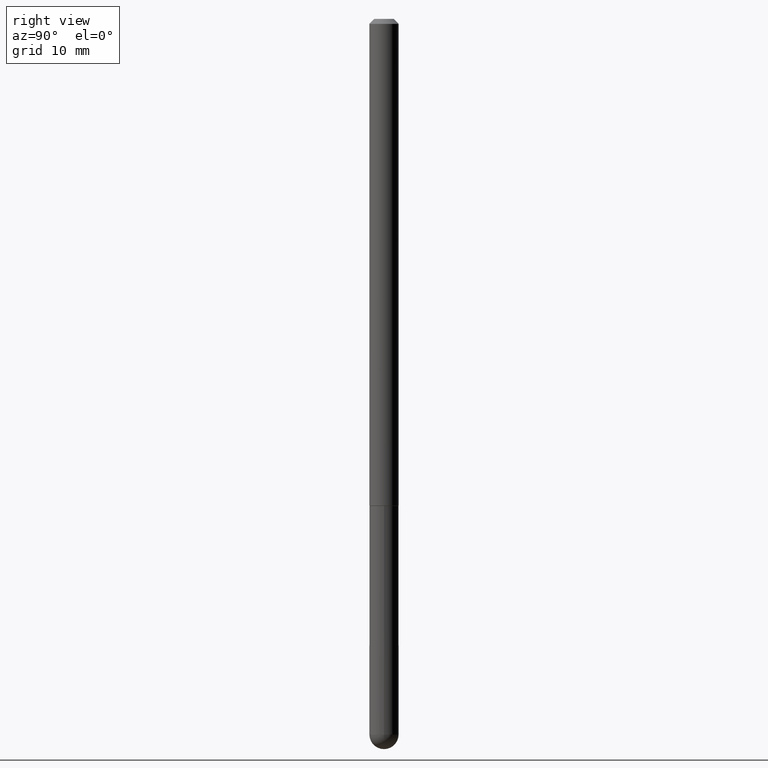
[diagram: clean part render]
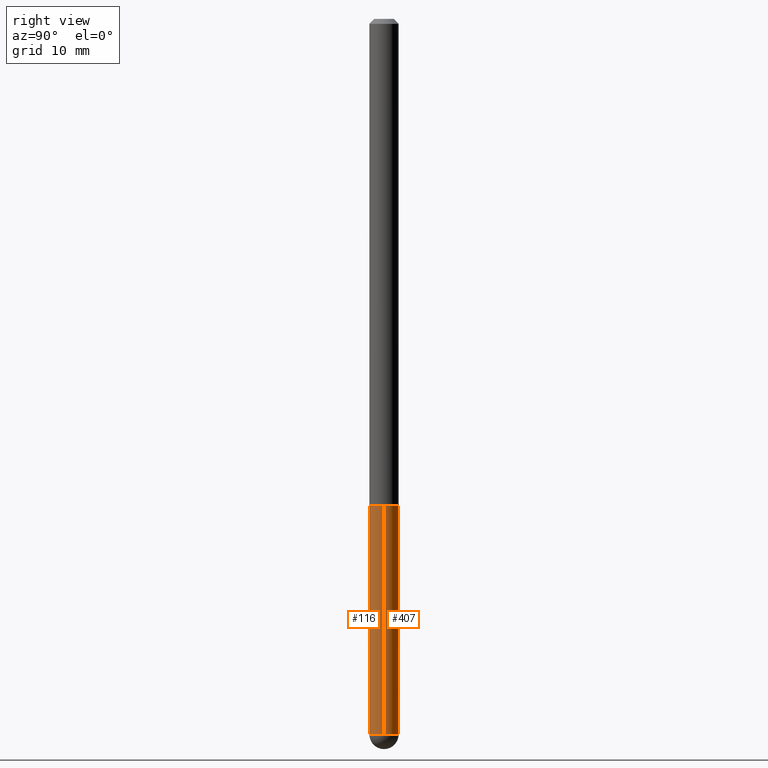
[diagram: same view with one multi-face feature highlighted, each face labeled with its STEP entity id]
A machine part, right view. The highlighted faces form ONE feature: a constant-radius fillet chain: 2 tangent blend faces with common blend radius 1.4999 mm. The faces share edges in the B-rep.
Their STEP definitions:
[1] entity #407 (Cylinder):
#14 = LINE ( 'NONE', #297, #315 ) ;
#18 = ORIENTED_EDGE ( 'NONE', *, *, #334, .F. ) ;
#20 = DIRECTION ( 'NONE',  ( 1.000000000000000000, -6.982962677686270655E-15, 0.000000000000000000 ) ) ;
#28 = EDGE_CURVE ( 'NONE', #272, #289, #105, .T. ) ;
#31 = EDGE_CURVE ( 'NONE', #390, #296, #183, .T. ) ;
#39 = CARTESIAN_POINT ( 'NONE',  ( -0.05905000000000001914, -8.068652084428701697E-15, -1.968499999999999694 ) ) ;
#46 = CARTESIAN_POINT ( 'NONE',  ( 7.076575357898237682E-29, -1.010347412427735067E-14, -2.893749999999999822 ) ) ;
#53 = AXIS2_PLACEMENT_3D ( 'NONE', #232, #355, #166 ) ;
#65 = AXIS2_PLACEMENT_3D ( 'NONE', #107, #238, #132 ) ;
#70 = EDGE_LOOP ( 'NONE', ( #229, #134, #169, #18, #363 ) ) ;
#91 = CYLINDRICAL_SURFACE ( 'NONE', #400, 0.05905000000000001914 ) ;
#103 = LINE ( 'NONE', #133, #192 ) ;
#105 = CIRCLE ( 'NONE', #65, 0.05905000000000001914 ) ;
#107 = CARTESIAN_POINT ( 'NONE',  ( 4.813905344975440714E-29, -6.872981015512730918E-15, -1.968499999999999694 ) ) ;
#132 = DIRECTION ( 'NONE',  ( 1.000000000000000000, -6.982962677686270655E-15, 0.000000000000000000 ) ) ;
#133 = CARTESIAN_POINT ( 'NONE',  ( 0.05905000000000001914, -4.123439461173741806E-16, 2.879382386107500921E-30 ) ) ;
#134 = ORIENTED_EDGE ( 'NONE', *, *, #317, .T. ) ;
#166 = DIRECTION ( 'NONE',  ( 1.000000000000000000, -6.982962677686270655E-15, 0.000000000000000000 ) ) ;
#169 = ORIENTED_EDGE ( 'NONE', *, *, #28, .F. ) ;
#174 = DIRECTION ( 'NONE',  ( -2.445468806185136597E-29, 3.491481338843145583E-15, 1.000000000000000000 ) ) ;
#183 = CIRCLE ( 'NONE', #288, 0.05905000000000001914 ) ;
#192 = VECTOR ( 'NONE', #361, 39.37007874015748143 ) ;
#216 = VERTEX_POINT ( 'NONE', #370 ) ;
#229 = ORIENTED_EDGE ( 'NONE', *, *, #314, .T. ) ;
#232 = CARTESIAN_POINT ( 'NONE',  ( 7.076575357898237682E-29, -1.010347412427735067E-14, -2.893749999999999822 ) ) ;
#238 = DIRECTION ( 'NONE',  ( -2.445468806185136597E-29, 3.491481338843145583E-15, 1.000000000000000000 ) ) ;
#247 = CIRCLE ( 'NONE', #53, 0.05905000000000001914 ) ;
#253 = CARTESIAN_POINT ( 'NONE',  ( 0.05905000000000001914, -8.900571516012416899E-15, -2.893749999999999822 ) ) ;
#265 = DIRECTION ( 'NONE',  ( -2.445468806185136877E-29, 3.491481338843145188E-15, 1.000000000000000000 ) ) ;
#272 = VERTEX_POINT ( 'NONE', #273 ) ;
#273 = CARTESIAN_POINT ( 'NONE',  ( 0.05905000000000001914, -7.285324961630105839E-15, -1.968499999999999694 ) ) ;
#288 = AXIS2_PLACEMENT_3D ( 'NONE', #46, #174, #20 ) ;
#289 = VERTEX_POINT ( 'NONE', #39 ) ;
#292 = FACE_OUTER_BOUND ( 'NONE', #70, .T. ) ;
#296 = VERTEX_POINT ( 'NONE', #307 ) ;
#297 = CARTESIAN_POINT ( 'NONE',  ( -0.05905000000000001914, 4.195754854663392958E-16, -2.904631170795522943E-30 ) ) ;
#307 = CARTESIAN_POINT ( 'NONE',  ( 4.123439461174440441E-16, 0.05904999999998979815, -2.893749999999999822 ) ) ;
#314 = EDGE_CURVE ( 'NONE', #296, #216, #247, .T. ) ;
#315 = VECTOR ( 'NONE', #265, 39.37007874015748143 ) ;
#317 = EDGE_CURVE ( 'NONE', #216, #289, #14, .T. ) ;
#329 = CARTESIAN_POINT ( 'NONE',  ( 0.000000000000000000, 0.000000000000000000, 0.000000000000000000 ) ) ;
#334 = EDGE_CURVE ( 'NONE', #390, #272, #103, .T. ) ;
#353 = DIRECTION ( 'NONE',  ( 1.000000000000000000, -6.982962677686266711E-15, 4.876176775795935793E-29 ) ) ;
#354 = DIRECTION ( 'NONE',  ( -2.445468806185136597E-29, 3.491481338843145583E-15, 1.000000000000000000 ) ) ;
#355 = DIRECTION ( 'NONE',  ( -2.445468806185136597E-29, 3.491481338843145583E-15, 1.000000000000000000 ) ) ;
#361 = DIRECTION ( 'NONE',  ( -2.445468806185136877E-29, 3.491481338843145188E-15, 1.000000000000000000 ) ) ;
#363 = ORIENTED_EDGE ( 'NONE', *, *, #31, .T. ) ;
#370 = CARTESIAN_POINT ( 'NONE',  ( -0.05905000000000001914, -8.068652084428701697E-15, -2.893749999999999822 ) ) ;
#390 = VERTEX_POINT ( 'NONE', #253 ) ;
#400 = AXIS2_PLACEMENT_3D ( 'NONE', #329, #354, #353 ) ;
#407 = ADVANCED_FACE ( 'NONE', ( #292 ), #91, .T. ) ;
[2] entity #116 (Cylinder):
#10 = VERTEX_POINT ( 'NONE', #302 ) ;
#14 = LINE ( 'NONE', #297, #315 ) ;
#19 = DIRECTION ( 'NONE',  ( 1.000000000000000000, -6.982962677686270655E-15, 0.000000000000000000 ) ) ;
#25 = CIRCLE ( 'NONE', #168, 0.05905000000000001914 ) ;
#29 = CARTESIAN_POINT ( 'NONE',  ( 7.076575357898237682E-29, -1.010347412427735067E-14, -2.893749999999999822 ) ) ;
#35 = EDGE_LOOP ( 'NONE', ( #271, #98, #357, #109, #160 ) ) ;
#39 = CARTESIAN_POINT ( 'NONE',  ( -0.05905000000000001914, -8.068652084428701697E-15, -1.968499999999999694 ) ) ;
#42 = CARTESIAN_POINT ( 'NONE',  ( 7.076575357898237682E-29, -1.010347412427735067E-14, -2.893749999999999822 ) ) ;
#56 = EDGE_CURVE ( 'NONE', #216, #10, #161, .T. ) ;
#63 = DIRECTION ( 'NONE',  ( -2.445468806185136597E-29, 3.491481338843145583E-15, 1.000000000000000000 ) ) ;
#89 = DIRECTION ( 'NONE',  ( 1.000000000000000000, -6.982962677686270655E-15, 0.000000000000000000 ) ) ;
#94 = EDGE_CURVE ( 'NONE', #289, #272, #25, .T. ) ;
#98 = ORIENTED_EDGE ( 'NONE', *, *, #56, .T. ) ;
#103 = LINE ( 'NONE', #133, #192 ) ;
#109 = ORIENTED_EDGE ( 'NONE', *, *, #334, .T. ) ;
#110 = AXIS2_PLACEMENT_3D ( 'NONE', #42, #235, #19 ) ;
#116 = ADVANCED_FACE ( 'NONE', ( #252 ), #157, .T. ) ;
#123 = DIRECTION ( 'NONE',  ( -2.445468806185136597E-29, 3.491481338843145583E-15, 1.000000000000000000 ) ) ;
#126 = AXIS2_PLACEMENT_3D ( 'NONE', #29, #290, #188 ) ;
#133 = CARTESIAN_POINT ( 'NONE',  ( 0.05905000000000001914, -4.123439461173741806E-16, 2.879382386107500921E-30 ) ) ;
#157 = CYLINDRICAL_SURFACE ( 'NONE', #397, 0.05905000000000001914 ) ;
#160 = ORIENTED_EDGE ( 'NONE', *, *, #94, .F. ) ;
#161 = CIRCLE ( 'NONE', #126, 0.05905000000000001914 ) ;
#168 = AXIS2_PLACEMENT_3D ( 'NONE', #281, #63, #89 ) ;
#188 = DIRECTION ( 'NONE',  ( 1.000000000000000000, -6.982962677686270655E-15, 0.000000000000000000 ) ) ;
#192 = VECTOR ( 'NONE', #361, 39.37007874015748143 ) ;
#216 = VERTEX_POINT ( 'NONE', #370 ) ;
#235 = DIRECTION ( 'NONE',  ( -2.445468806185136597E-29, 3.491481338843145583E-15, 1.000000000000000000 ) ) ;
#252 = FACE_OUTER_BOUND ( 'NONE', #35, .T. ) ;
#253 = CARTESIAN_POINT ( 'NONE',  ( 0.05905000000000001914, -8.900571516012416899E-15, -2.893749999999999822 ) ) ;
#265 = DIRECTION ( 'NONE',  ( -2.445468806185136877E-29, 3.491481338843145188E-15, 1.000000000000000000 ) ) ;
#271 = ORIENTED_EDGE ( 'NONE', *, *, #317, .F. ) ;
#272 = VERTEX_POINT ( 'NONE', #273 ) ;
#273 = CARTESIAN_POINT ( 'NONE',  ( 0.05905000000000001914, -7.285324961630105839E-15, -1.968499999999999694 ) ) ;
#281 = CARTESIAN_POINT ( 'NONE',  ( 4.813905344975440714E-29, -6.872981015512730918E-15, -1.968499999999999694 ) ) ;
#289 = VERTEX_POINT ( 'NONE', #39 ) ;
#290 = DIRECTION ( 'NONE',  ( -2.445468806185136597E-29, 3.491481338843145583E-15, 1.000000000000000000 ) ) ;
#297 = CARTESIAN_POINT ( 'NONE',  ( -0.05905000000000001914, 4.195754854663392958E-16, -2.904631170795522943E-30 ) ) ;
#302 = CARTESIAN_POINT ( 'NONE',  ( -4.195754854662709114E-16, -0.05905000000001047605, -2.893749999999999822 ) ) ;
#315 = VECTOR ( 'NONE', #265, 39.37007874015748143 ) ;
#317 = EDGE_CURVE ( 'NONE', #216, #289, #14, .T. ) ;
#334 = EDGE_CURVE ( 'NONE', #390, #272, #103, .T. ) ;
#345 = EDGE_CURVE ( 'NONE', #10, #390, #360, .T. ) ;
#352 = CARTESIAN_POINT ( 'NONE',  ( 0.000000000000000000, 0.000000000000000000, 0.000000000000000000 ) ) ;
#357 = ORIENTED_EDGE ( 'NONE', *, *, #345, .T. ) ;
#360 = CIRCLE ( 'NONE', #110, 0.05905000000000001914 ) ;
#361 = DIRECTION ( 'NONE',  ( -2.445468806185136877E-29, 3.491481338843145188E-15, 1.000000000000000000 ) ) ;
#370 = CARTESIAN_POINT ( 'NONE',  ( -0.05905000000000001914, -8.068652084428701697E-15, -2.893749999999999822 ) ) ;
#377 = DIRECTION ( 'NONE',  ( 1.000000000000000000, -6.982962677686266711E-15, 4.876176775795935793E-29 ) ) ;
#390 = VERTEX_POINT ( 'NONE', #253 ) ;
#397 = AXIS2_PLACEMENT_3D ( 'NONE', #352, #123, #377 ) ;